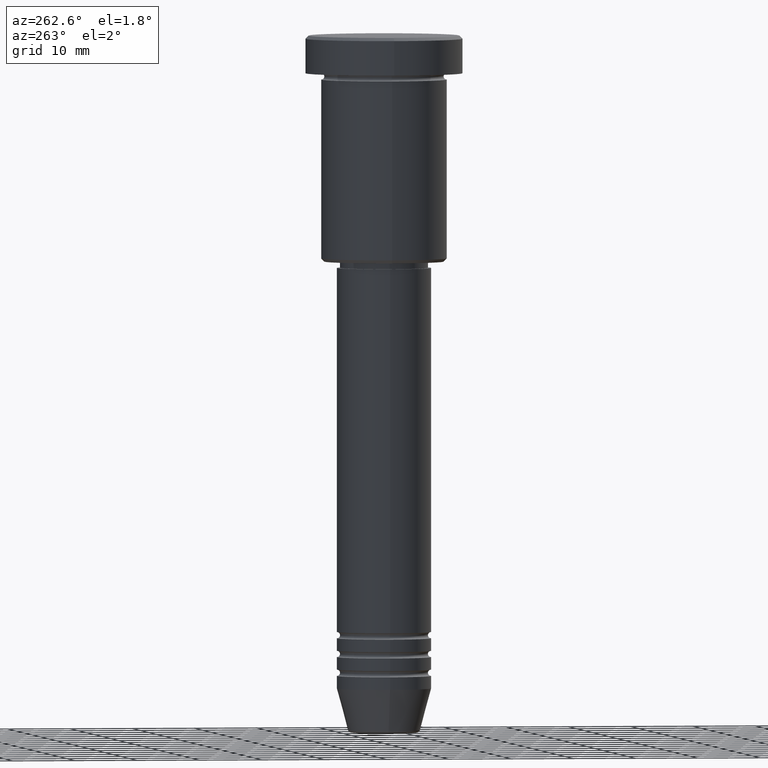
[diagram: clean part render]
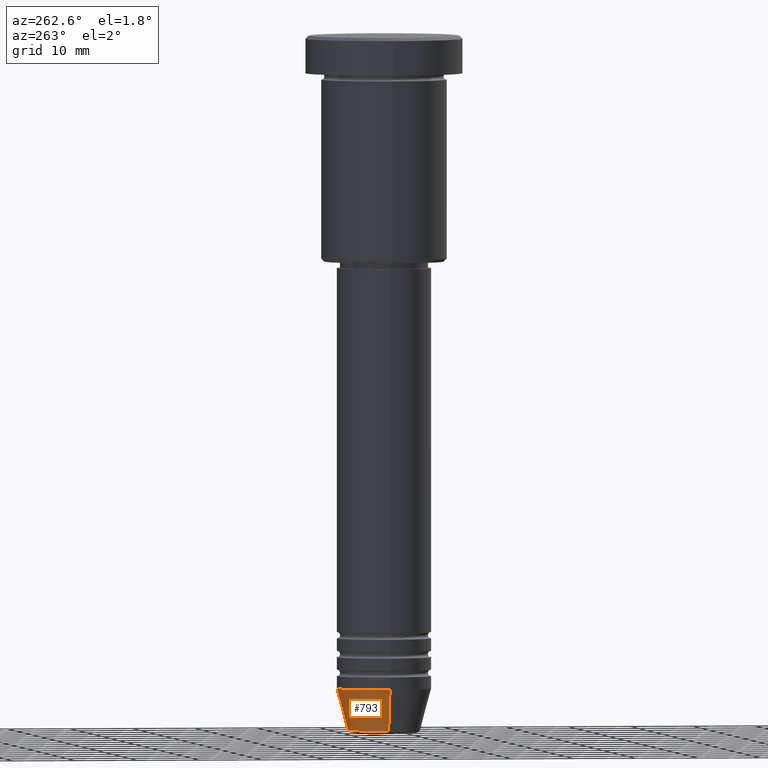
[diagram: same view with one face highlighted and labeled with its STEP entity id]
A machine part, auxiliary view. The second image highlights one B-rep face of the part: STEP entity #793.
In plain terms, the highlighted conical surface has half-angle 15 deg.
Its self-contained STEP definition (entity closure, byte-faithful):
#8 = EDGE_CURVE ( 'NONE', #135, #73, #998, .T. ) ;
#11 = CARTESIAN_POINT ( 'NONE',  ( 5.723655072137193933, 0.000000000000000000, -110.6294095225512706 ) ) ;
#24 = VECTOR ( 'NONE', #760, 1000.000000000000000 ) ;
#46 = VECTOR ( 'NONE', #351, 1000.000000000000000 ) ;
#57 = CARTESIAN_POINT ( 'NONE',  ( 0.000000000000000000, 0.000000000000000000, -104.0000000000000142 ) ) ;
#73 = VERTEX_POINT ( 'NONE', #804 ) ;
#129 = VERTEX_POINT ( 'NONE', #1088 ) ;
#134 = LINE ( 'NONE', #1111, #24 ) ;
#135 = VERTEX_POINT ( 'NONE', #815 ) ;
#152 = DIRECTION ( 'NONE',  ( -0.000000000000000000, -0.000000000000000000, 1.000000000000000000 ) ) ;
#165 = CIRCLE ( 'NONE', #503, 5.723655072137193933 ) ;
#188 = ORIENTED_EDGE ( 'NONE', *, *, #716, .T. ) ;
#248 = EDGE_CURVE ( 'NONE', #929, #135, #898, .T. ) ;
#314 = DIRECTION ( 'NONE',  ( 1.000000000000000000, 0.000000000000000000, 0.000000000000000000 ) ) ;
#329 = AXIS2_PLACEMENT_3D ( 'NONE', #57, #152, #419 ) ;
#351 = DIRECTION ( 'NONE',  ( 0.2588190451025213501, 0.000000000000000000, 0.9659258262890680902 ) ) ;
#408 = EDGE_CURVE ( 'NONE', #129, #73, #134, .T. ) ;
#419 = DIRECTION ( 'NONE',  ( 1.000000000000000000, 0.000000000000000000, 0.000000000000000000 ) ) ;
#474 = DIRECTION ( 'NONE',  ( -0.000000000000000000, -0.000000000000000000, 1.000000000000000000 ) ) ;
#503 = AXIS2_PLACEMENT_3D ( 'NONE', #578, #474, #1049 ) ;
#578 = CARTESIAN_POINT ( 'NONE',  ( 0.000000000000000000, 0.000000000000000000, -110.6294095225512706 ) ) ;
#583 = EDGE_LOOP ( 'NONE', ( #188, #605, #1029, #955 ) ) ;
#605 = ORIENTED_EDGE ( 'NONE', *, *, #408, .T. ) ;
#676 = CONICAL_SURFACE ( 'NONE', #921, 7.500000000000000000, 0.2617993877991500740 ) ;
#716 = EDGE_CURVE ( 'NONE', #929, #129, #165, .T. ) ;
#760 = DIRECTION ( 'NONE',  ( -0.2588190451025213501, 3.169619151431772337E-17, 0.9659258262890680902 ) ) ;
#766 = FACE_OUTER_BOUND ( 'NONE', #583, .T. ) ;
#793 = ADVANCED_FACE ( 'NONE', ( #766 ), #676, .T. ) ;
#804 = CARTESIAN_POINT ( 'NONE',  ( -7.500000000000000000, 9.184850993605147944E-16, -104.0000000000000142 ) ) ;
#815 = CARTESIAN_POINT ( 'NONE',  ( 7.500000000000000000, 0.000000000000000000, -104.0000000000000142 ) ) ;
#861 = CARTESIAN_POINT ( 'NONE',  ( 0.000000000000000000, 0.000000000000000000, -104.0000000000000142 ) ) ;
#868 = DIRECTION ( 'NONE',  ( -0.000000000000000000, -0.000000000000000000, 1.000000000000000000 ) ) ;
#898 = LINE ( 'NONE', #906, #46 ) ;
#906 = CARTESIAN_POINT ( 'NONE',  ( 7.500000000000000000, 0.000000000000000000, -104.0000000000000142 ) ) ;
#921 = AXIS2_PLACEMENT_3D ( 'NONE', #861, #868, #314 ) ;
#929 = VERTEX_POINT ( 'NONE', #11 ) ;
#955 = ORIENTED_EDGE ( 'NONE', *, *, #248, .F. ) ;
#998 = CIRCLE ( 'NONE', #329, 7.500000000000000000 ) ;
#1029 = ORIENTED_EDGE ( 'NONE', *, *, #8, .F. ) ;
#1049 = DIRECTION ( 'NONE',  ( 1.000000000000000000, 0.000000000000000000, 0.000000000000000000 ) ) ;
#1088 = CARTESIAN_POINT ( 'NONE',  ( -5.723655072137193933, 8.097153428560737887E-16, -110.6294095225512706 ) ) ;
#1111 = CARTESIAN_POINT ( 'NONE',  ( -7.500000000000000000, 9.184850993605147944E-16, -104.0000000000000142 ) ) ;